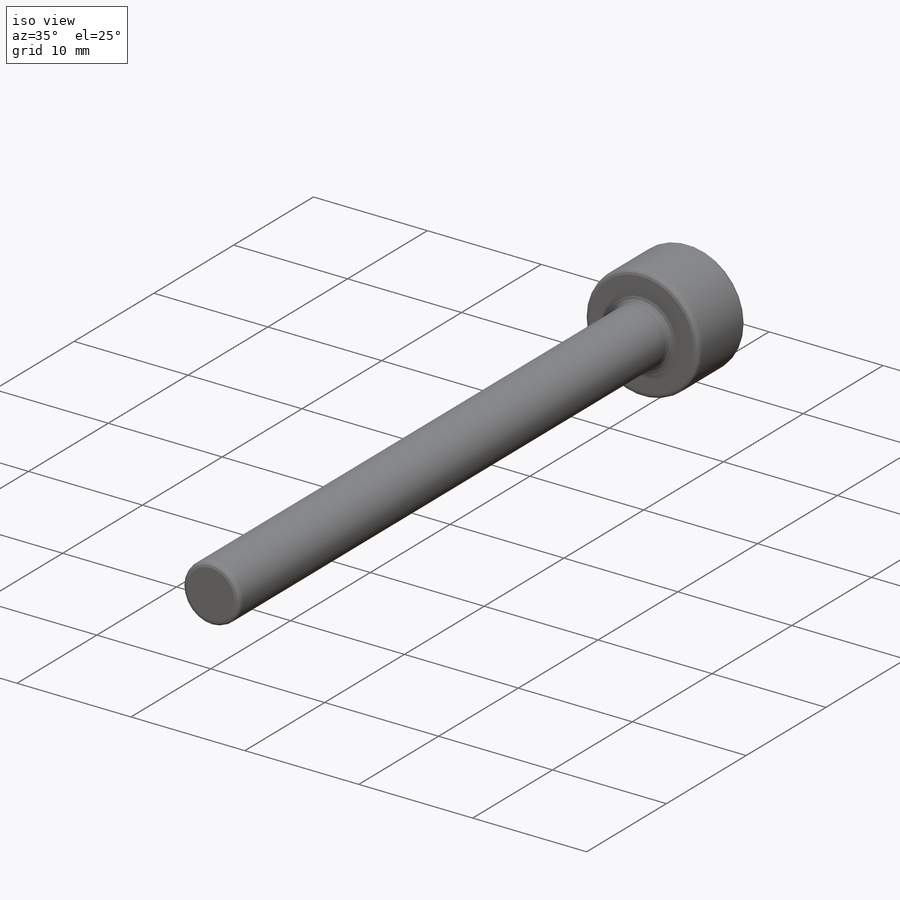
[diagram: iso view]
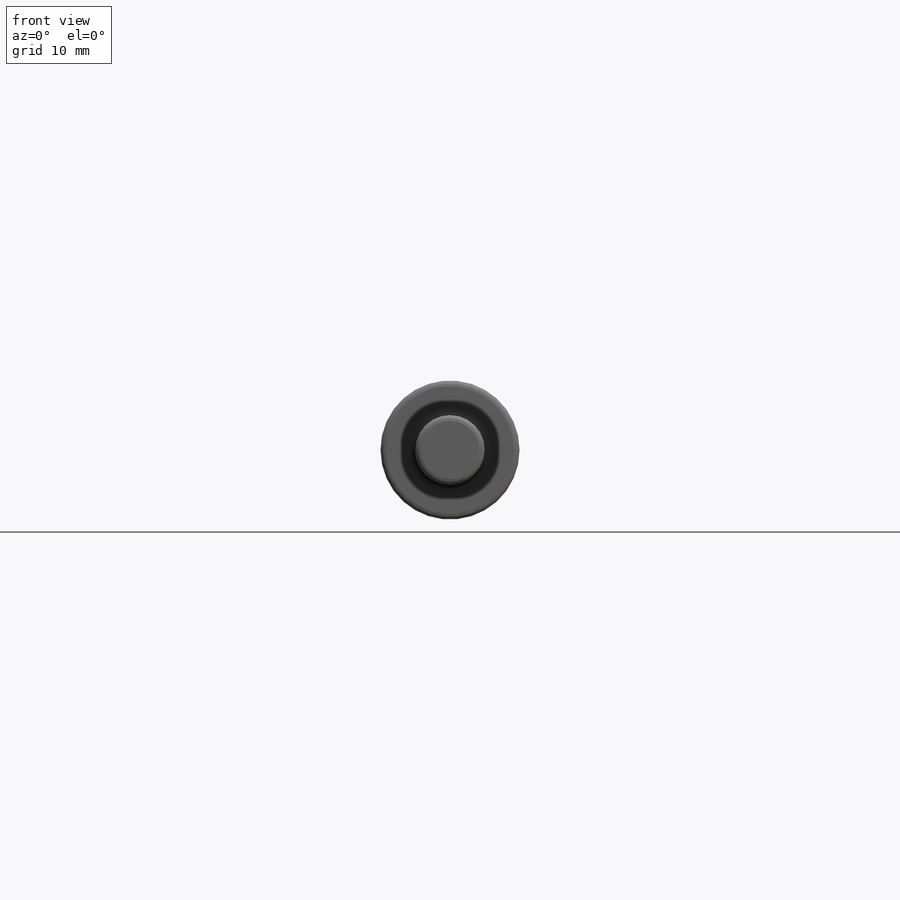
[diagram: front view]
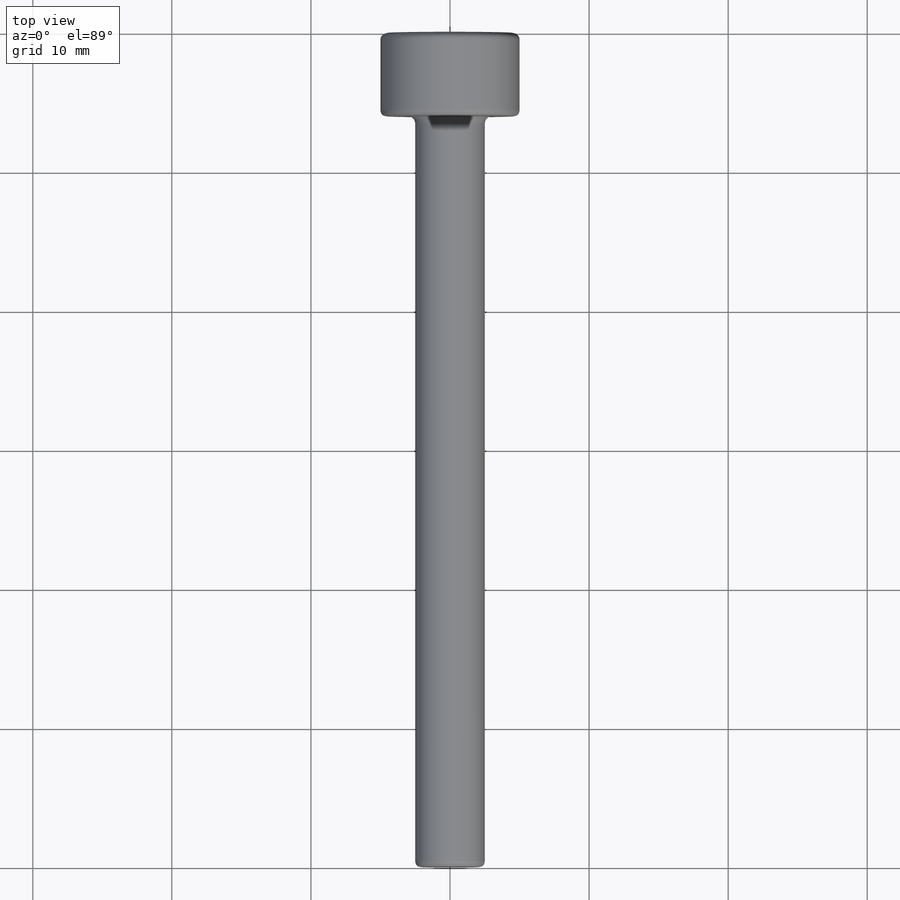
[diagram: top view]
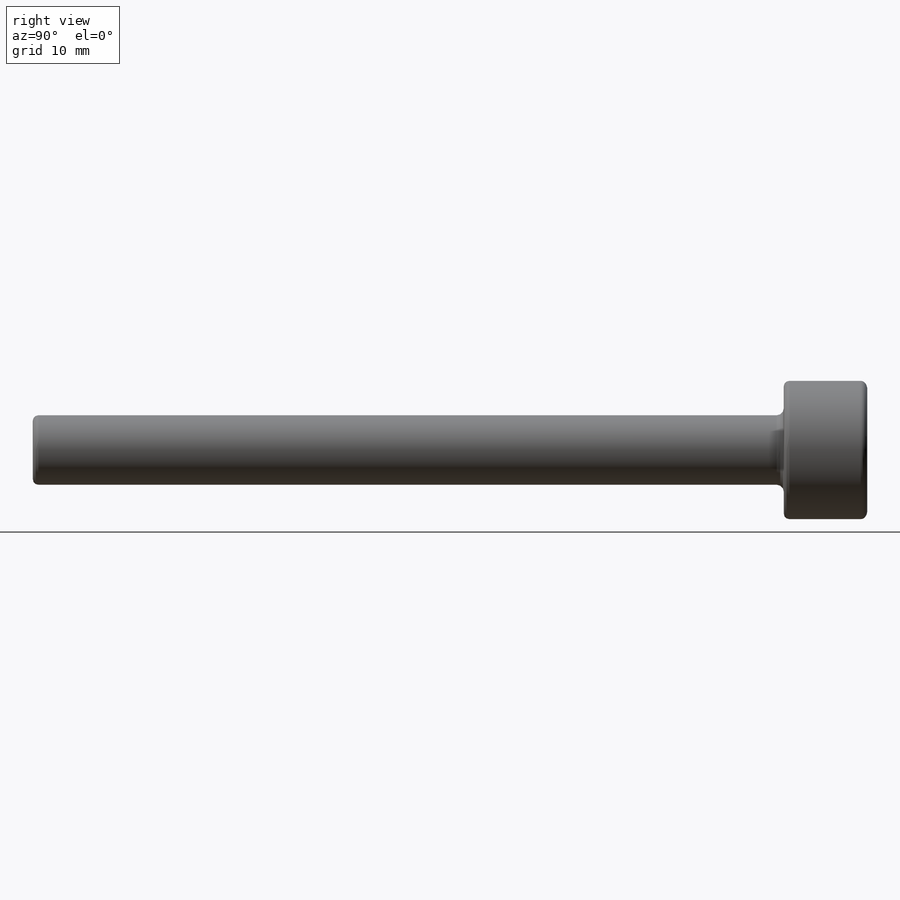
[diagram: right view]
SOLIDWORKS PART (.sldprt)
format: sldprt  version: not decoded by parser v0  size: 1,427,456 bytes
history: native  units: mm
features: sketch x9, extrude x5, plane x4, fillet x4, cut_extrude x3, chamfer x2, material x1 (+14 scaffold rows collapsed; 3 parser-record rows omitted)
feature tree (45):
  scaffold x14  (default folders/planes/origin — collapsed)
  material  "合金鋼"
  plane  "前基準面"
  plane  "上基準面"
  plane  "右基準面"
  parser-record x3  (decoder bookkeeping rows leaked as tree rows — omitted from the tree; the rows remain in map.json)
  sketch  "草圖1"  dims[螺絲頭外徑=10.0mm]
  extrude  "螺釘頭"  Depth=6mm 螺絲頭高度=6mm
  sketch  "草圖2"  dims[螺紋部外徑=5.0mm]
  extrude  "螺釘部"  Depth=54mm 桿部總長=54mm
  sketch  "草圖3"  dims[六角洞直徑=5.0mm]
  cut_extrude  "內六角孔"  Depth=3mm 六角洞深度=3mm
  chamfer  "頭部導角"  Distance=0.4mm Angle=30deg 螺絲頭導角=0.4mm
  fillet  "頸部圓角"  Radius=0.5mm 螺絲頭底部導圓角=0.5mm
  sketch  "長度中間點"  dims[D1=~24.534192mm]
  plane  "長度中間面"
  fillet  "圓角1"  Radius=6mm
  fillet  "圓角2"  Radius=0.4mm
  sketch  "Sketch1"  dims[D1=6.0mm]
  extrude  "止付_螺紋部"  Depth=20mm
  sketch  "Sketch2"  dims[D1=3.0mm]
  cut_extrude  "止付_六角孔"  Depth=2mm
  chamfer  "止付_邊導角"  Distance=0.3mm
  sketch  "Sketch3"  dims[D1=10.0mm]
  extrude  "薄頭_頭部"  Depth=1.5mm
  sketch  "Sketch4"  dims[D1=1.0mm]
  cut_extrude  "薄頭_六角孔"  Depth=1mm
  sketch  "Sketch5"  dims[D1=6.0mm]
  extrude  "薄頭_螺紋部"  Depth=16mm
  fillet  "薄頭_導圓"  Radius=0.5mm
decode coverage: 23 of 23 modeling features carry decoded parameters
note: ~ marks probable driven/reference dimensions
note: suppression state not decoded; provenance and decode notes live in map.json
